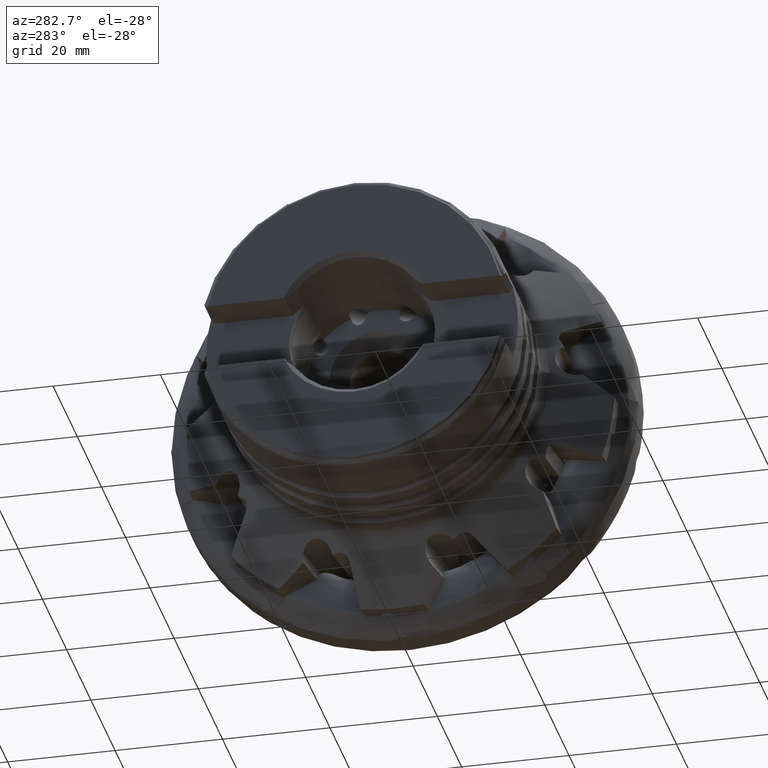
[diagram: clean part render]
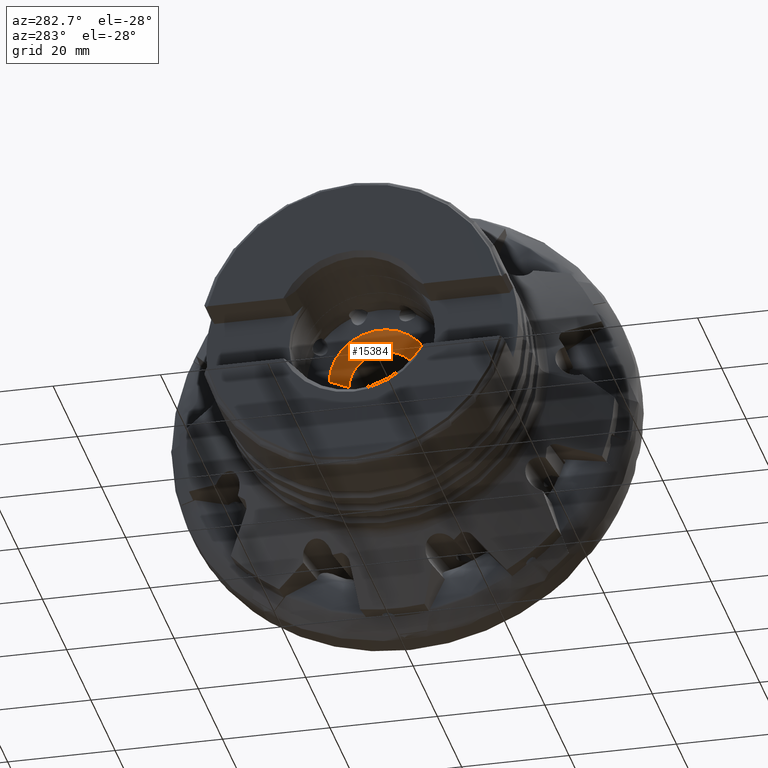
[diagram: same view with one face highlighted and labeled with its STEP entity id]
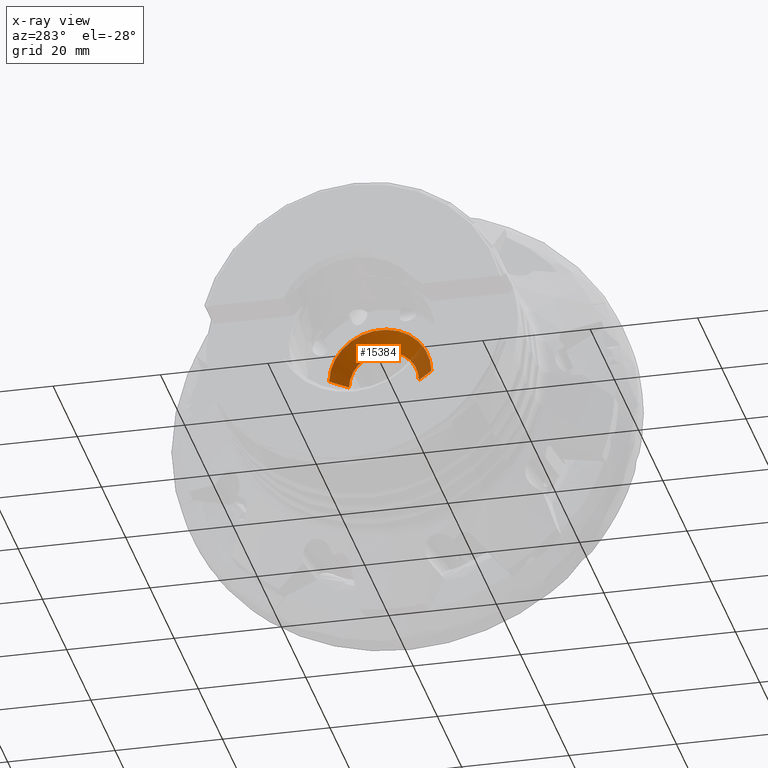
[diagram: x-ray of the same camera — body ghosted, the highlighted face saturated]
A machine part, auxiliary view. The second image highlights one B-rep face of the part: STEP entity #15384.
The next image is the same camera in x-ray: the body ghosted, the highlighted face saturated — about 15% of this face is hidden behind the body in this view.
In plain terms, the highlighted conical surface has half-angle 45 deg.
Its self-contained STEP definition (entity closure, byte-faithful):
#2606 = CIRCLE ( 'NONE', #9123, 6.500000000000001800 ) ;
#2739 = DIRECTION ( 'NONE',  ( 1.000000000000000000, 1.653279061886031000E-016, -0.0000000000000000000 ) ) ;
#2805 = VECTOR ( 'NONE', #18491, 999.9999999999998900 ) ;
#3265 = CARTESIAN_POINT ( 'NONE',  ( -24.15000000000000200, 6.499999999999997300, 0.0000000000000000000 ) ) ;
#3440 = ORIENTED_EDGE ( 'NONE', *, *, #11402, .F. ) ;
#3764 = CARTESIAN_POINT ( 'NONE',  ( -24.15000000000000200, -3.992668934454765000E-015, 0.0000000000000000000 ) ) ;
#4138 = CARTESIAN_POINT ( 'NONE',  ( -24.15000000000000200, -6.500000000000005300, 7.960204194457798400E-016 ) ) ;
#4302 = EDGE_CURVE ( 'NONE', #4778, #6376, #6263, .T. ) ;
#4778 = VERTEX_POINT ( 'NONE', #4138 ) ;
#4788 = VERTEX_POINT ( 'NONE', #12835 ) ;
#6245 = ORIENTED_EDGE ( 'NONE', *, *, #15995, .T. ) ;
#6263 = LINE ( 'NONE', #7175, #15351 ) ;
#6376 = VERTEX_POINT ( 'NONE', #12815 ) ;
#7175 = CARTESIAN_POINT ( 'NONE',  ( -24.15000000000000200, -6.500000000000005300, 0.0000000000000000000 ) ) ;
#7662 = DIRECTION ( 'NONE',  ( 1.000000000000000000, 1.653279061886031000E-016, -0.0000000000000000000 ) ) ;
#8093 = DIRECTION ( 'NONE',  ( -1.000000000000000000, -1.653279061886031000E-016, 0.0000000000000000000 ) ) ;
#8818 = EDGE_LOOP ( 'NONE', ( #18640, #6245, #17288, #3440 ) ) ;
#9123 = AXIS2_PLACEMENT_3D ( 'NONE', #11462, #2739, #12899 ) ;
#10552 = LINE ( 'NONE', #15543, #2805 ) ;
#10841 = AXIS2_PLACEMENT_3D ( 'NONE', #3764, #8093, #12455 ) ;
#11402 = EDGE_CURVE ( 'Kante14', #4788, #6376, #14506, .T. ) ;
#11462 = CARTESIAN_POINT ( 'NONE',  ( -24.15000000000000200, -3.992668934454765000E-015, 0.0000000000000000000 ) ) ;
#11940 = FACE_OUTER_BOUND ( 'NONE', #8818, .T. ) ;
#12455 = DIRECTION ( 'NONE',  ( 0.0000000000000000000, -1.000000000000000000, 0.0000000000000000000 ) ) ;
#12815 = CARTESIAN_POINT ( 'NONE',  ( -27.15000000000000200, -9.500000000000016000, 0.0000000000000000000 ) ) ;
#12835 = CARTESIAN_POINT ( 'NONE',  ( -27.15000000000000200, 9.500000000000007100, 1.163414459189987100E-015 ) ) ;
#12899 = DIRECTION ( 'NONE',  ( 0.0000000000000000000, 1.000000000000000000, 0.0000000000000000000 ) ) ;
#14506 = CIRCLE ( 'NONE', #15868, 9.500000000000010700 ) ;
#14877 = CONICAL_SURFACE ( 'NONE', #10841, 6.500000000000001800, 0.7853981633974499400 ) ;
#15351 = VECTOR ( 'NONE', #17433, 999.9999999999998900 ) ;
#15384 = ADVANCED_FACE ( 'NONE', ( #11940 ), #14877, .F. ) ;
#15543 = CARTESIAN_POINT ( 'NONE',  ( -24.15000000000000200, 6.499999999999997300, 7.960204194457797400E-016 ) ) ;
#15717 = VERTEX_POINT ( 'NONE', #3265 ) ;
#15868 = AXIS2_PLACEMENT_3D ( 'NONE', #16339, #7662, #17804 ) ;
#15995 = EDGE_CURVE ( 'NONE', #15717, #4778, #2606, .T. ) ;
#16339 = CARTESIAN_POINT ( 'NONE',  ( -27.15000000000000200, -4.488652653020574000E-015, 0.0000000000000000000 ) ) ;
#16949 = EDGE_CURVE ( 'NONE', #15717, #4788, #10552, .T. ) ;
#17288 = ORIENTED_EDGE ( 'NONE', *, *, #4302, .T. ) ;
#17433 = DIRECTION ( 'NONE',  ( -0.7071067811865462400, -0.7071067811865489100, 0.0000000000000000000 ) ) ;
#17804 = DIRECTION ( 'NONE',  ( 0.0000000000000000000, 1.000000000000000000, 0.0000000000000000000 ) ) ;
#18491 = DIRECTION ( 'NONE',  ( -0.7071067811865464600, 0.7071067811865486800, 8.659560562354948900E-017 ) ) ;
#18640 = ORIENTED_EDGE ( 'NONE', *, *, #16949, .F. ) ;